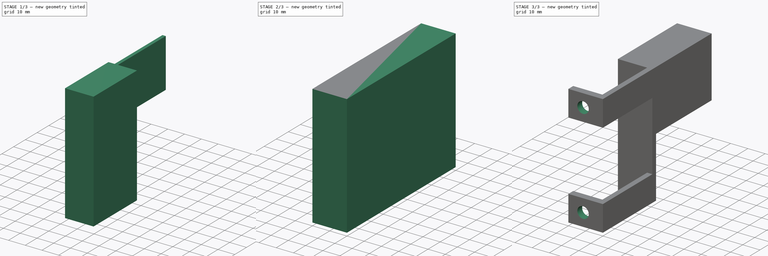
[diagram: build sequence overview — one tinted view per stage of 3, left to right]
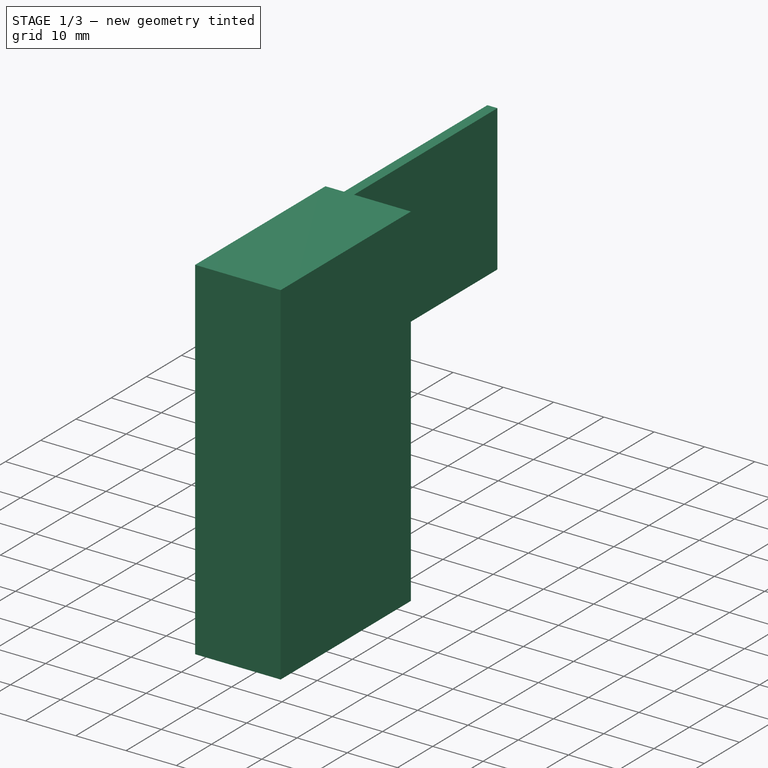
[diagram: stage 1 of 3 — iso view after this stage's code; geometry added in this stage tinted green]
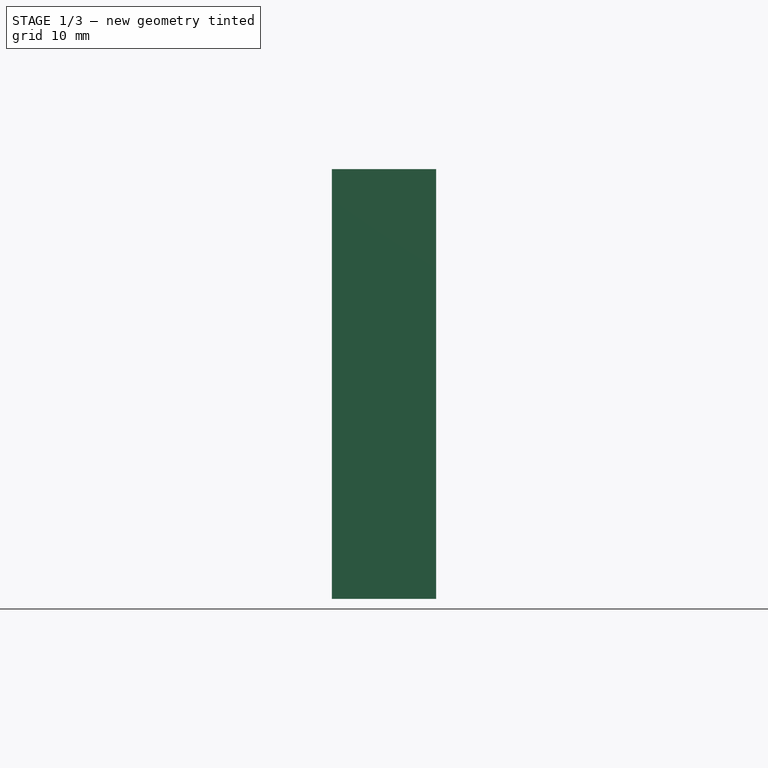
[diagram: stage 1 of 3 — front view after this stage's code; geometry added in this stage tinted green]
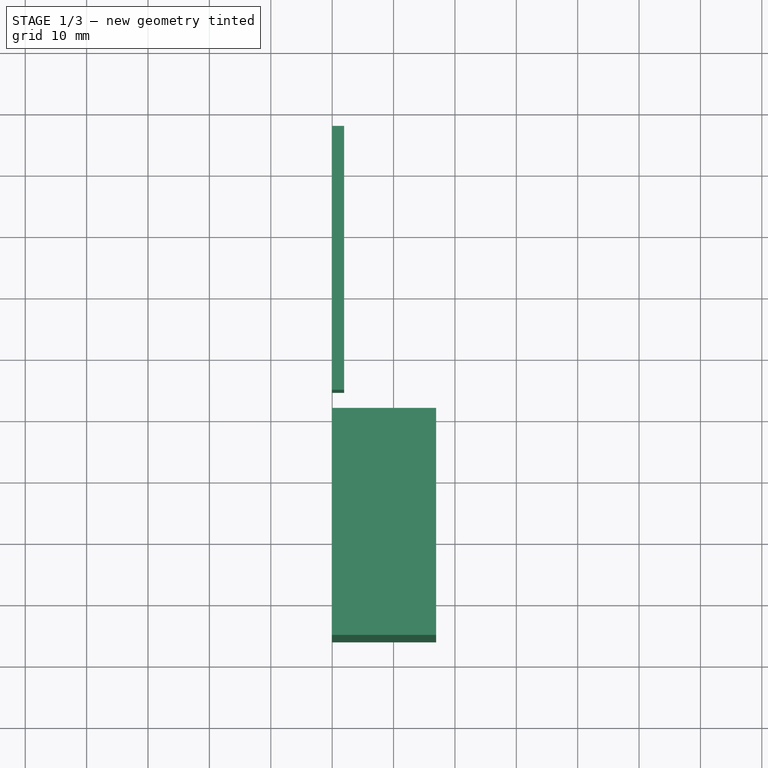
[diagram: stage 1 of 3 — top view after this stage's code; geometry added in this stage tinted green]
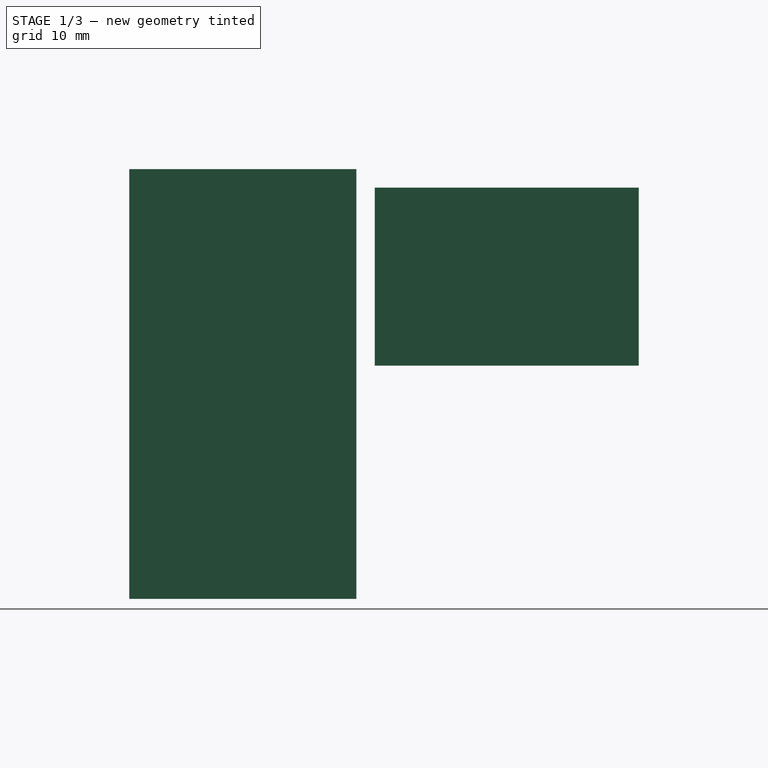
[diagram: stage 1 of 3 — right view after this stage's code; geometry added in this stage tinted green]
FCSTD DOCUMENT  (FreeCAD 0.17R13541 (Git))
Label: cosi-measure-v1
License: All rights reserved
LicenseURL: http://en.wikipedia.org/wiki/All_rights_reserved
objects: Sketcher::SketchObject×6, PartDesign::Pad×5, PartDesign::Body×5, PartDesign::ShapeBinder×4, PartDesign::Boolean×1, PartDesign::Hole×1
note: 28 computed .brp shape members not serialized (recipe doc carries the construction recipe); baked Part::Feature solids carry a one-line shape summary decoded from their .brp

FEATURE [PartDesign::Body] Body002
  Group = -> [CopyPad001,Sketch002,Pad002]
  Origin = -> Origin002
  Tip = -> Pad002
FEATURE [PartDesign::ShapeBinder] CopyPad002
FEATURE [Sketcher::SketchObject] Sketch003
  MapMode = 5
  Placement = pos=(0,0,0) rot=(1,0,0;3.14159rad)
  Support = -> [CopyPad002]
  sketch-geometry (4):
    g0: LineSegment StartX=-0.0549603 StartY=-4 StartZ=0 EndX=16.945 EndY=-4 EndZ=0
    g1: LineSegment StartX=16.945 StartY=-4 StartZ=0 EndX=16.945 EndY=-41 EndZ=0
    g2: LineSegment StartX=16.945 StartY=-41 StartZ=0 EndX=-0.0549603 EndY=-41 EndZ=0
    g3: LineSegment StartX=-0.0549603 StartY=-41 StartZ=0 EndX=-0.0549603 EndY=-4 EndZ=0
  constraints (11):
    c: Coincident(g0,g1)
    c: Coincident(g1,g2)
    c: Coincident(g2,g3)
    c: Coincident(g3,g0)
    c: Horizontal(g0)
    c: Horizontal(g2)
    c: Vertical(g1)
    c: Vertical(g3)
    c: DistanceX(g0,g0) = 17
    c: DistanceY(g3,g3) = 37
    c: DistanceY(g0,g-1) = 4
FEATURE [PartDesign::Pad] Pad003
  Length = 70
  Length2 = 100
  Profile = -> Sketch003
  Reversed = true
  Type = 0
FEATURE [PartDesign::Body] Body003
  Group = -> [CopyPad002,Sketch003,Pad003]
  Origin = -> Origin003
  Tip = -> Pad003
FEATURE [PartDesign::ShapeBinder] CopyPad003
FEATURE [Sketcher::SketchObject] Sketch004
  MapMode = 5
  Placement = pos=(-0.0549603,0,0) rot=(0.57735,-0.57735,-0.57735;2.0944rad)
  Support = -> [CopyPad003]
  sketch-geometry (4):
    g0: LineSegment StartX=-87 StartY=67 StartZ=0 EndX=-44 EndY=67 EndZ=0
    g1: LineSegment StartX=-44 StartY=67 StartZ=0 EndX=-44 EndY=38 EndZ=0
    g2: LineSegment StartX=-44 StartY=38 StartZ=0 EndX=-87 EndY=38 EndZ=0
    g3: LineSegment StartX=-87 StartY=38 StartZ=0 EndX=-87 EndY=67 EndZ=0
  constraints (12):
    c: Coincident(g0,g1)
    c: Coincident(g1,g2)
    c: Coincident(g2,g3)
    c: Coincident(g3,g0)
    c: Horizontal(g0)
    c: Horizontal(g2)
    c: Vertical(g1)
    c: Vertical(g3)
    c: DistanceY(g-1,g1) = 38
    c: DistanceX(g1,g-1) = 44
    c: DistanceX(g2,g2) = 43
    c: DistanceY(g3,g3) = 29
FEATURE [PartDesign::Pad] Pad004
  Length = 2
  Length2 = 100
  Profile = -> Sketch004
  Reversed = true
  Type = 0
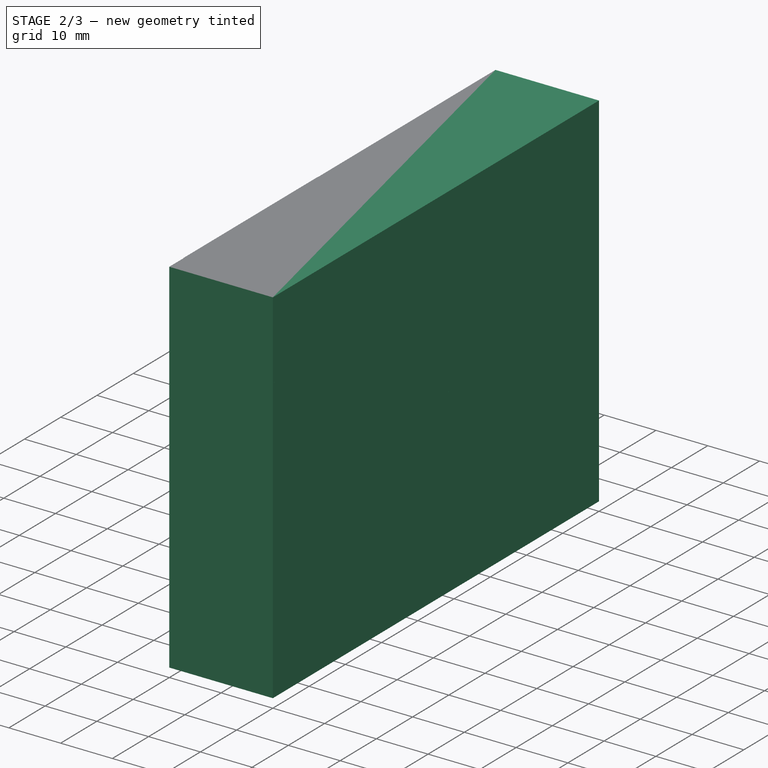
[diagram: stage 2 of 3 — iso view after this stage's code; geometry added in this stage tinted green]
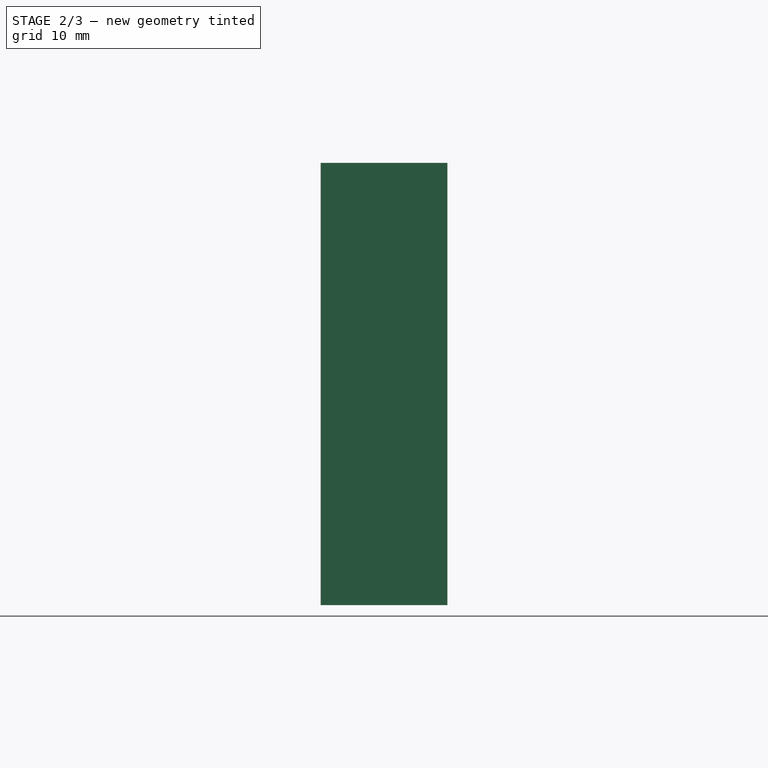
[diagram: stage 2 of 3 — front view after this stage's code; geometry added in this stage tinted green]
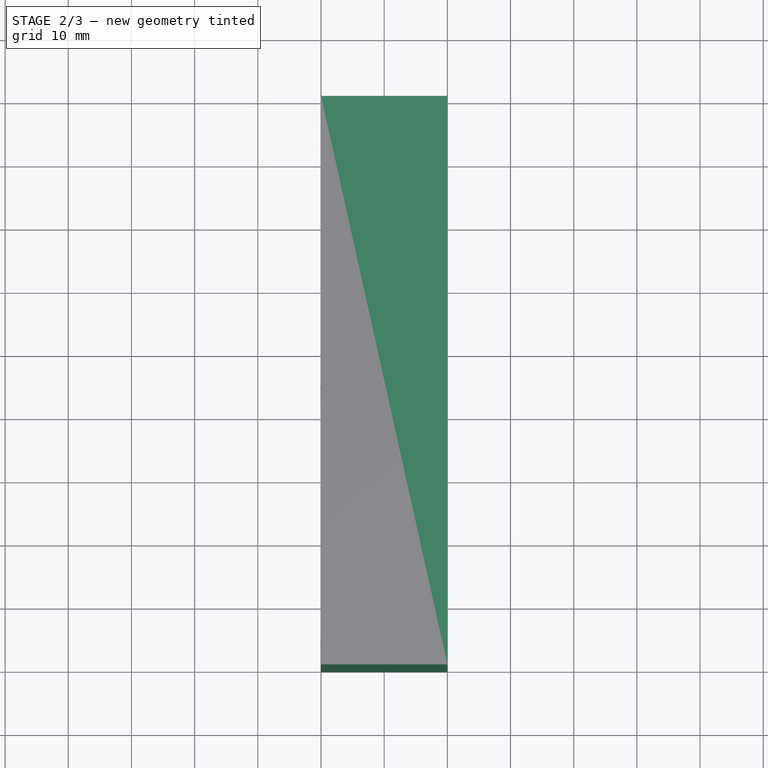
[diagram: stage 2 of 3 — top view after this stage's code; geometry added in this stage tinted green]
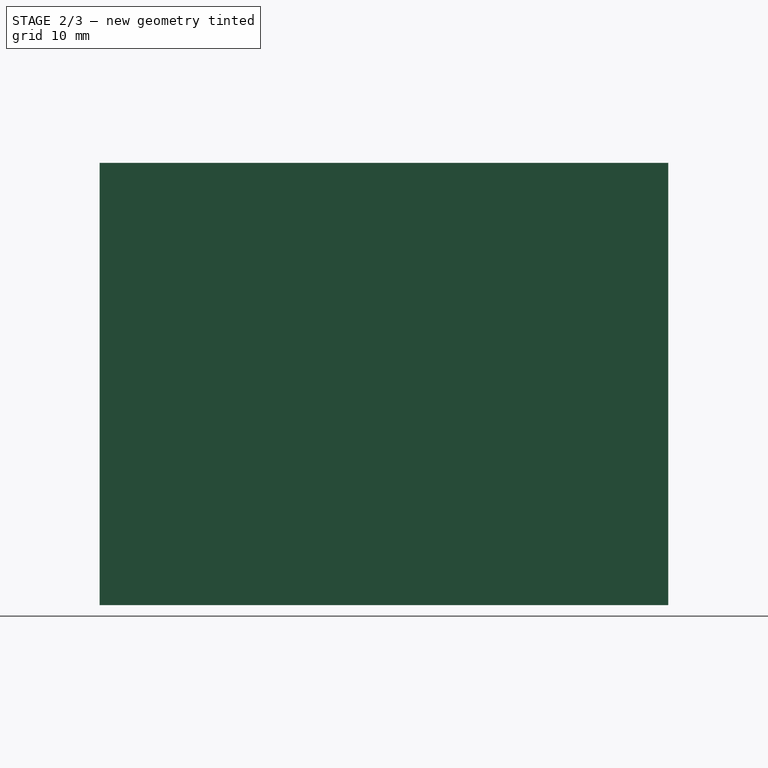
[diagram: stage 2 of 3 — right view after this stage's code; geometry added in this stage tinted green]
FEATURE [Sketcher::SketchObject] Sketch
  MapMode = 5
  Placement = pos=(0,0,0) rot=(0.57735,0.57735,0.57735;2.0944rad)
  Support = -> [YZ_Plane]
  sketch-geometry (4):
    g0: LineSegment StartX=90 StartY=0 StartZ=0 EndX=0 EndY=0 EndZ=0
    g1: LineSegment StartX=0 StartY=0 StartZ=0 EndX=0 EndY=70 EndZ=0
    g2: LineSegment StartX=0 StartY=70 StartZ=0 EndX=90 EndY=70 EndZ=0
    g3: LineSegment StartX=90 StartY=70 StartZ=0 EndX=90 EndY=0 EndZ=0
  constraints (12):
    c: Coincident(g0,g1)
    c: Coincident(g1,g2)
    c: Coincident(g2,g3)
    c: Coincident(g3,g0)
    c: Horizontal(g0)
    c: Horizontal(g2)
    c: Vertical(g1)
    c: Vertical(g3)
    c: DistanceY(g0) = 0
    c: DistanceX(g1) = 0
    c: DistanceX(g2,g2) = 90
    c: DistanceY(g3,g3) = 70
FEATURE [PartDesign::Pad] Pad
  Length = 20
  Length2 = 100
  Placement = pos=(0,0,0) rot=(0.57735,0.57735,0.57735;2.0944rad)
  Profile = -> Sketch
  Type = 0
FEATURE [PartDesign::ShapeBinder] CopyPad
FEATURE [Sketcher::SketchObject] Sketch001
  MapMode = 5
  Placement = pos=(0,0,0) rot=(-0.57735,0.57735,0.57735;4.18879rad)
  Support = -> [CopyPad]
  sketch-geometry (4):
    g0: LineSegment StartX=-41 StartY=55 StartZ=0 EndX=0 EndY=55 EndZ=0
    g1: LineSegment StartX=0 StartY=55 StartZ=0 EndX=0 EndY=15 EndZ=0
    g2: LineSegment StartX=0 StartY=15 StartZ=0 EndX=-41 EndY=15 EndZ=0
    g3: LineSegment StartX=-41 StartY=15 StartZ=0 EndX=-41 EndY=55 EndZ=0
  constraints (12):
    c: Coincident(g0,g1)
    c: Coincident(g1,g2)
    c: Coincident(g2,g3)
    c: Coincident(g3,g0)
    c: Horizontal(g0)
    c: Horizontal(g2)
    c: Vertical(g1)
    c: Vertical(g3)
    c: DistanceY(g-1,g1) = 15
    c: DistanceY(g1,g1) = 40
    c: DistanceX(g0,g0) = 41
    c: DistanceX(g1,g-1) = 0
FEATURE [PartDesign::Pad] Pad001
  Length = 20
  Length2 = 100
  Profile = -> Sketch001
  Reversed = true
  Type = 0
FEATURE [PartDesign::Body] Body001
  Group = -> [CopyPad,Sketch001,Pad001]
  Origin = -> Origin001
  Tip = -> Pad001
FEATURE [PartDesign::ShapeBinder] CopyPad001
FEATURE [Sketcher::SketchObject] Sketch002
  MapMode = 5
  Placement = pos=(0,0,0) rot=(-0.57735,0.57735,0.57735;4.18879rad)
  Support = -> [CopyPad001]
  sketch-geometry (4):
    g0: LineSegment StartX=-90 StartY=35 StartZ=0 EndX=-44 EndY=35 EndZ=0
    g1: LineSegment StartX=-44 StartY=35 StartZ=0 EndX=-44 EndY=0 EndZ=0
    g2: LineSegment StartX=-44 StartY=0 StartZ=0 EndX=-90 EndY=0 EndZ=0
    g3: LineSegment StartX=-90 StartY=0 StartZ=0 EndX=-90 EndY=35 EndZ=0
  constraints (12):
    c: Coincident(g0,g1)
    c: Coincident(g1,g2)
    c: Coincident(g2,g3)
    c: Coincident(g3,g0)
    c: Horizontal(g2)
    c: Vertical(g1)
    c: Vertical(g3)
    c: Horizontal(g0)
    c: DistanceX(g1,g-1) = 44
    c: DistanceY(g-1,g1) = 0
    c: DistanceY(g1,g1) = 35
    c: DistanceX(g0,g0) = 46
FEATURE [PartDesign::Pad] Pad002
  Length = 20
  Length2 = 100
  Profile = -> Sketch002
  Reversed = true
  Type = 0
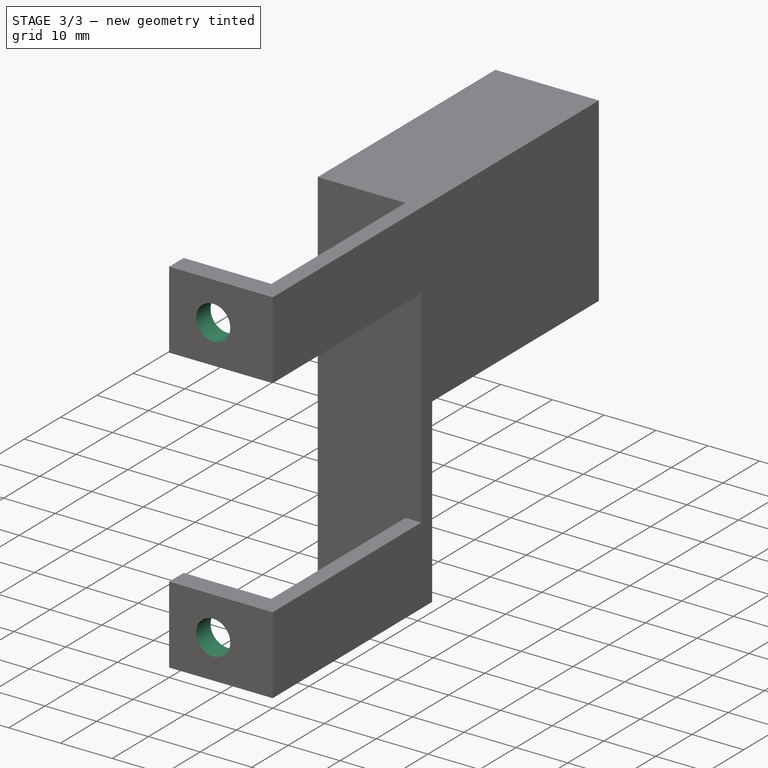
[diagram: stage 3 of 3 — iso view after this stage's code; geometry added in this stage tinted green]
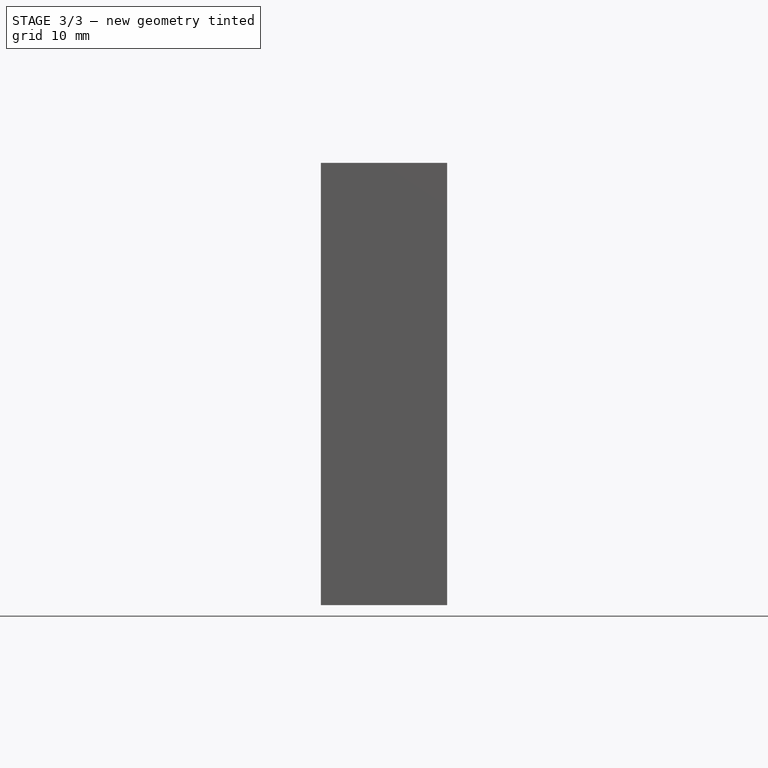
[diagram: stage 3 of 3 — front view after this stage's code; geometry added in this stage tinted green]
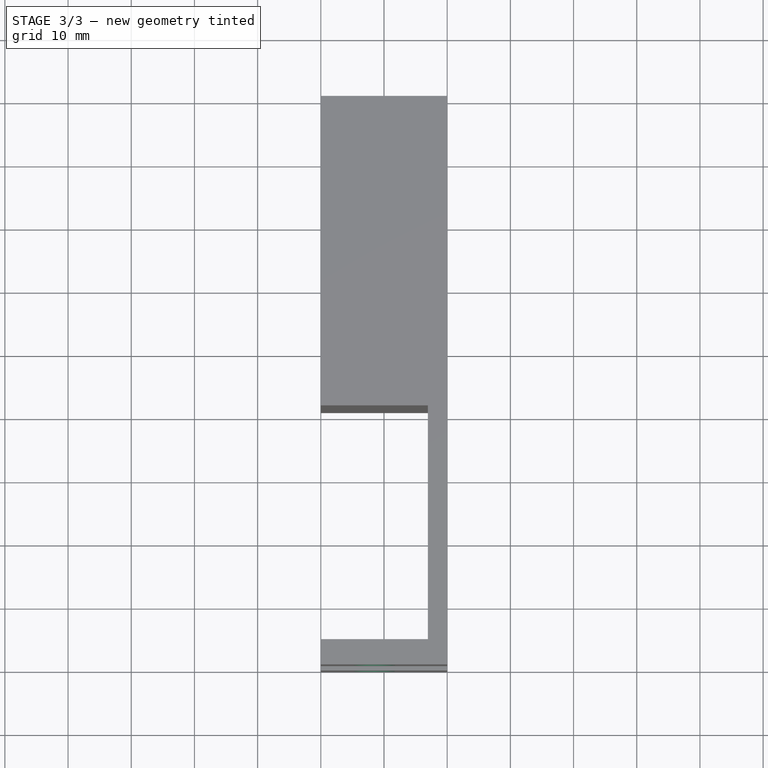
[diagram: stage 3 of 3 — top view after this stage's code; geometry added in this stage tinted green]
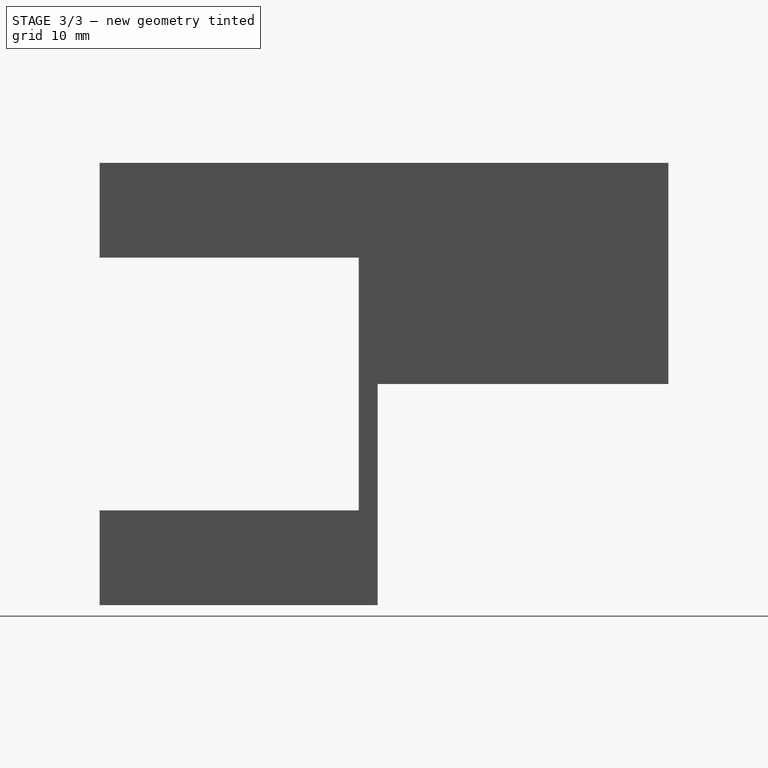
[diagram: stage 3 of 3 — right view after this stage's code; geometry added in this stage tinted green]
FEATURE [PartDesign::Body] Body004
  Group = -> [CopyPad003,Sketch004,Pad004]
  Origin = -> Origin004
  Tip = -> Pad004
FEATURE [PartDesign::Boolean] Boolean
  BaseFeature = -> Pad
  Group = -> [Body004,Body003,Body001,Body002]
  Type = 1
FEATURE [Sketcher::SketchObject] Sketch005
  MapMode = 5
  Placement = pos=(0,4,0) rot=(0,0.707107,0.707107;3.14159rad)
  Support = -> [Boolean]
  sketch-geometry (2):
    g0: Circle CenterX=-8.5 CenterY=7.5 CenterZ=0 NormalX=0 NormalY=0 NormalZ=1 AngleXU=0 Radius=3.8055
    g1: Circle CenterX=-8.5 CenterY=62.5 CenterZ=0 NormalX=0 NormalY=0 NormalZ=1 AngleXU=0 Radius=4.9939
  constraints (4):
    c: Vertical(g0,g1)
    c: DistanceY(g-1,g0) = 7.5
    c: DistanceX(g0,g-1) = 8.5
    c: DistanceY(g0,g1) = 55
FEATURE [PartDesign::Hole] Hole
  BaseFeature = -> Boolean
  Depth = 25
  DepthType = 1
  Diameter = 6.6
  DrillPoint = 1
  DrillPointAngle = 118
  HoleCutCountersinkAngle = 90
  HoleCutDepth = 0
  HoleCutDiameter = 6
  HoleCutType = 0
  ModelActualThread = false
  Profile = -> Sketch005
  Tapered = false
  TaperedAngle = 90
  ThreadAngle = 0
  ThreadClass = 0
  ThreadCutOffInner = 0
  ThreadCutOffOuter = 0
  ThreadDirection = 0
  ThreadFit = 0
  ThreadPitch = 0
  ThreadSize = 7
  ThreadType = 1
  Threaded = false
FEATURE [PartDesign::Body] Body
  Group = -> [Sketch,Pad,Boolean,Sketch005,Hole]
  Origin = -> Origin
  Tip = -> Hole
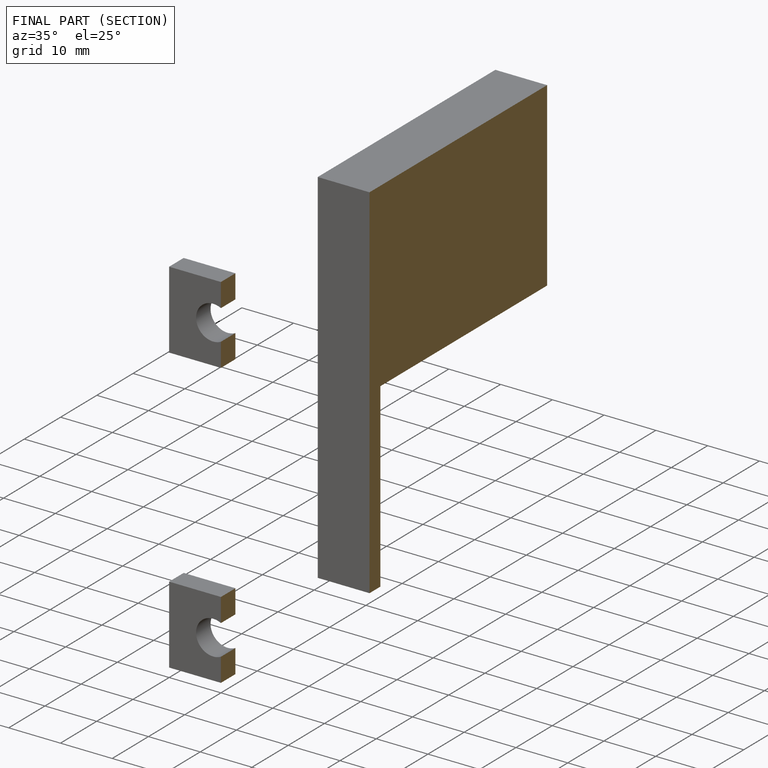
[diagram: finished part — half-section view (interior)]
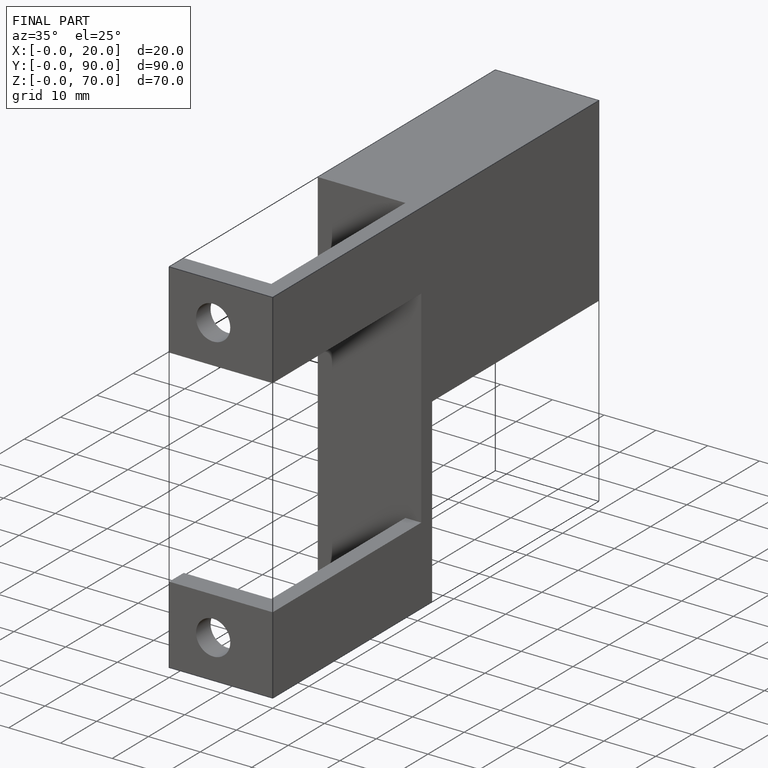
[diagram: finished part — iso view with bounding-box wireframe]
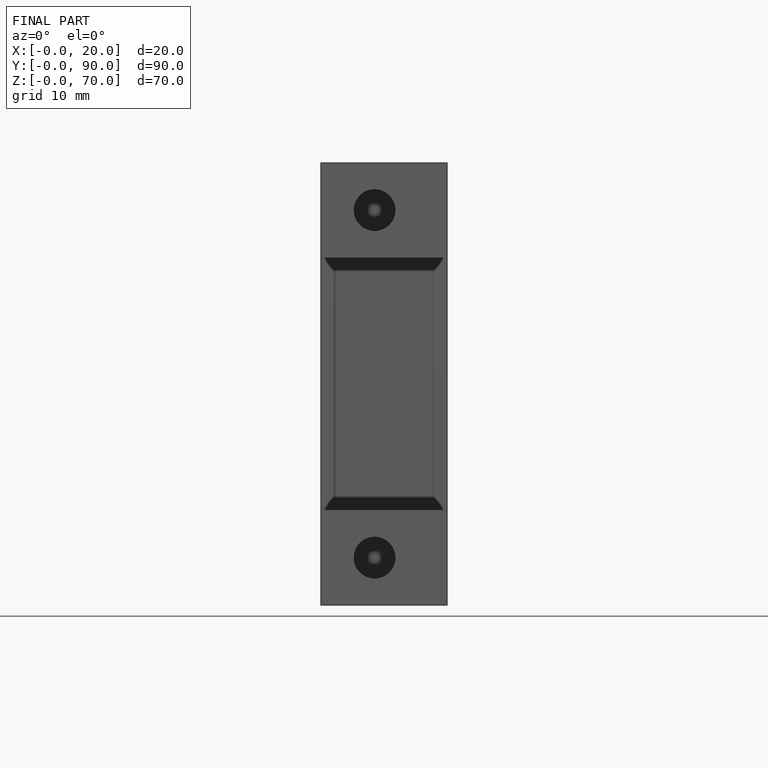
[diagram: finished part — front view with bounding-box wireframe]
